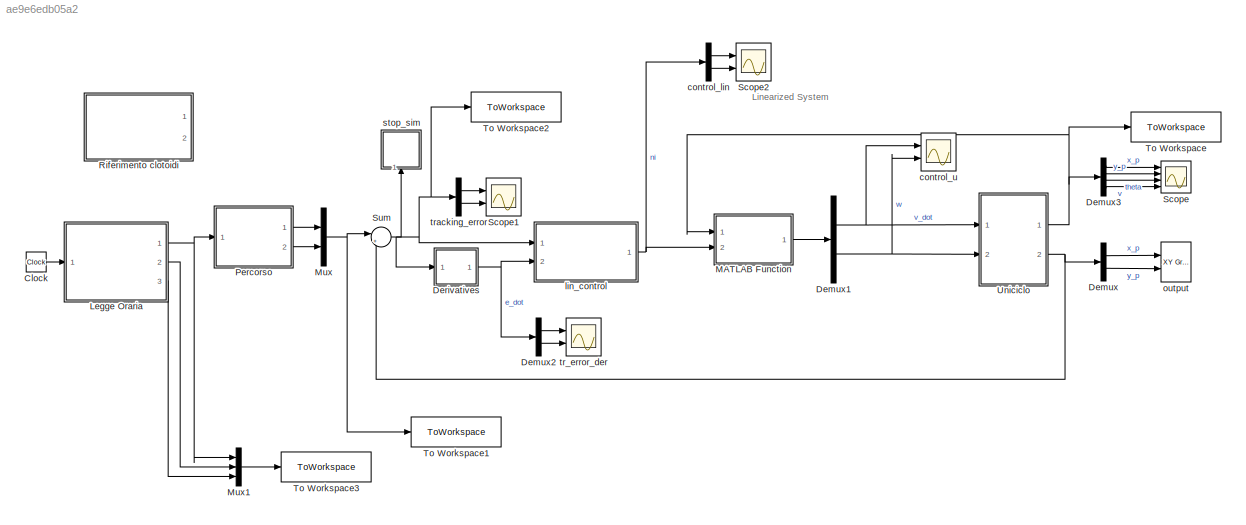
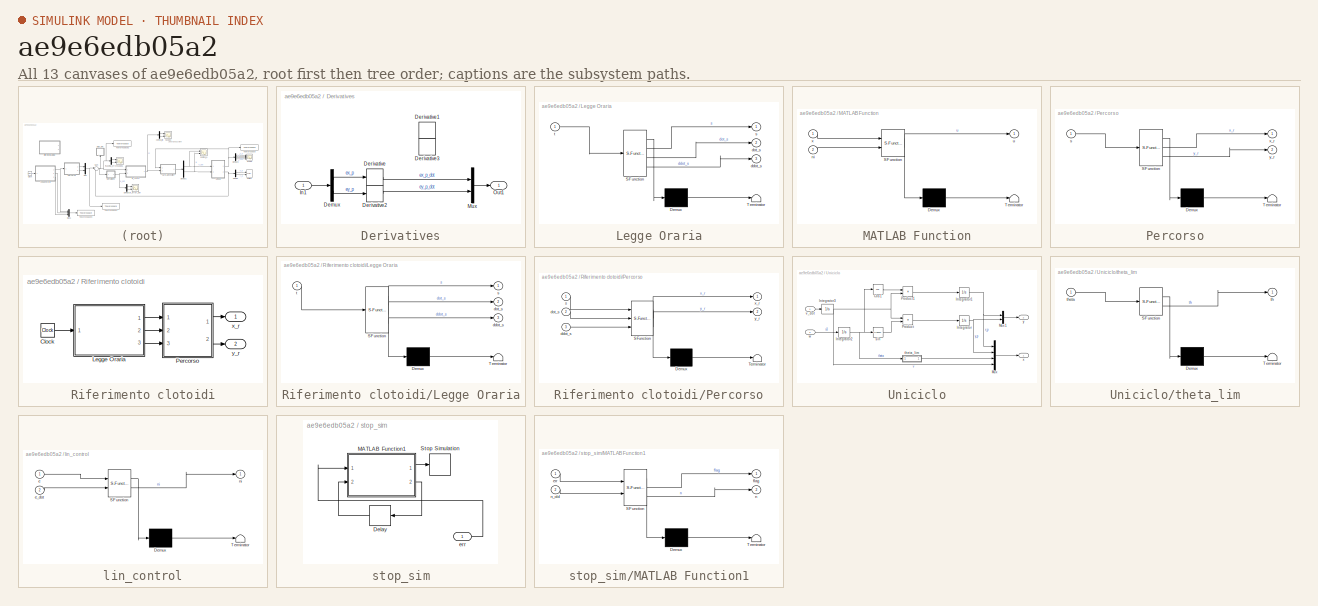
[diagram: thumbnail index - all 13 canvases of the model, root first then tree order]
MODEL slx_ae9e6edb05a2
KIND model
CONFIG AbsTol = auto
CONFIG EnableMultiTasking = off
CONFIG FixedStep = auto
CONFIG InitFcn = init_uniciclo
CONFIG MaxStep = 0.01
CONFIG MinStep = auto
CONFIG RelTol = 1e-3
CONFIG SampleTimeConstraint = Unconstrained
CONFIG Solver = VariableStepAuto
CONFIG SolverName = VariableStepAuto
CONFIG StartTime = 0.0
CONFIG StopFcn = stop_uniciclo
CONFIG StopTime = Inf
BLOCK [Clock] Clock
BLOCK [Demux] Demux
  Outputs = 2
  Ports = [1, 2]
BLOCK [Demux] Demux1
  Outputs = 2
  Ports = [1, 2]
BLOCK [Demux] Demux2
  Outputs = 2
  Ports = [1, 2]
BLOCK [Demux] Demux3
  Ports = [1, 4]
BLOCK [SubSystem] Derivatives
  Ports = [1, 1]
  RequestExecContextInheritance = off
BLOCK [Demux] Derivatives/Demux
  Outputs = 2
  Ports = [1, 2]
BLOCK [Derivative] Derivatives/Derivative
  CoefficientInTFapproximation = 1e10
BLOCK [Derivative] Derivatives/Derivative1
  CoefficientInTFapproximation = 1e10
  Commented = on
BLOCK [Derivative] Derivatives/Derivative2
  CoefficientInTFapproximation = 1e10
BLOCK [Derivative] Derivatives/Derivative3
  CoefficientInTFapproximation = 1e10
  Commented = on
BLOCK [Inport] Derivatives/In1
BLOCK [Mux] Derivatives/Mux
  DisplayOption = bar
  Inputs = 2
  Ports = [2, 1]
BLOCK [Outport] Derivatives/Out1
BLOCK [SubSystem] Legge Oraria
  ErrorFcn = Stateflow.Translate.translate
  PermitHierarchicalResolution = ExplicitOnly
  Ports = [1, 3]
  RequestExecContextInheritance = off
  SFBlockType = MATLAB Function
  TreatAsAtomicUnit = on
BLOCK [Demux] Legge Oraria/ Demux 
  Outputs = 1
  Ports = [1, 1]
BLOCK [S-Function] Legge Oraria/ SFunction 
  EnableBusSupport = on
  FunctionName = sf_sfun
  Parameters = v_rif
  PortCounts = [1 4]
  Ports = [1, 4]
  SFcnIsStateOwnerBlock = off
  SFunctionDeploymentMode = off
  Tag = Stateflow S-Function 7
BLOCK [Terminator] Legge Oraria/ Terminator 
BLOCK [Outport] Legge Oraria/ddot_s
  Port = 3
BLOCK [Outport] Legge Oraria/dot_s
  Port = 2
BLOCK [Outport] Legge Oraria/s
BLOCK [Inport] Legge Oraria/t
BLOCK [SubSystem] MATLAB Function
  ErrorFcn = Stateflow.Translate.translate
  PermitHierarchicalResolution = ExplicitOnly
  Ports = [2, 1]
  RequestExecContextInheritance = off
  SFBlockType = MATLAB Function
  TreatAsAtomicUnit = on
BLOCK [Demux] MATLAB Function/ Demux 
  Outputs = 1
  Ports = [1, 1]
BLOCK [S-Function] MATLAB Function/ SFunction 
  EnableBusSupport = on
  FunctionName = sf_sfun
  PortCounts = [2 2]
  Ports = [2, 2]
  SFcnIsStateOwnerBlock = off
  SFunctionDeploymentMode = off
  Tag = Stateflow S-Function 2
BLOCK [Terminator] MATLAB Function/ Terminator 
BLOCK [Inport] MATLAB Function/ni
  Port = 2
BLOCK [Outport] MATLAB Function/u
BLOCK [Inport] MATLAB Function/x
BLOCK [Mux] Mux
  DisplayOption = bar
  Inputs = 2
  Ports = [2, 1]
BLOCK [Mux] Mux1
  DisplayOption = bar
  Inputs = 3
  Ports = [3, 1]
BLOCK [SubSystem] Percorso
  ErrorFcn = Stateflow.Translate.translate
  PermitHierarchicalResolution = ExplicitOnly
  Ports = [1, 2]
  RequestExecContextInheritance = off
  SFBlockType = MATLAB Function
  TreatAsAtomicUnit = on
BLOCK [Demux] Percorso/ Demux 
  Outputs = 1
  Ports = [1, 1]
BLOCK [S-Function] Percorso/ SFunction 
  EnableBusSupport = on
  FunctionName = sf_sfun
  PortCounts = [1 3]
  Ports = [1, 3]
  SFcnIsStateOwnerBlock = off
  SFunctionDeploymentMode = off
  Tag = Stateflow S-Function 8
BLOCK [Terminator] Percorso/ Terminator 
BLOCK [Inport] Percorso/s
BLOCK [Outport] Percorso/x_r
BLOCK [Outport] Percorso/y_r
  Port = 2
BLOCK [SubSystem] Riferimento clotoidi
  Commented = on
  Ports = [0, 2]
  RequestExecContextInheritance = off
BLOCK [Clock] Riferimento clotoidi/Clock
BLOCK [SubSystem] Riferimento clotoidi/Legge Oraria
  ErrorFcn = Stateflow.Translate.translate
  PermitHierarchicalResolution = ExplicitOnly
  Ports = [1, 3]
  RequestExecContextInheritance = off
  SFBlockType = MATLAB Function
  TreatAsAtomicUnit = on
BLOCK [Demux] Riferimento clotoidi/Legge Oraria/ Demux 
  Outputs = 1
  Ports = [1, 1]
BLOCK [S-Function] Riferimento clotoidi/Legge Oraria/ SFunction 
  EnableBusSupport = on
  FunctionName = sf_sfun
  Parameters = v_iniziale
  PortCounts = [1 4]
  Ports = [1, 4]
  SFcnIsStateOwnerBlock = off
  SFunctionDeploymentMode = off
  Tag = Stateflow S-Function 3
BLOCK [Terminator] Riferimento clotoidi/Legge Oraria/ Terminator 
BLOCK [Outport] Riferimento clotoidi/Legge Oraria/ddot_s
  Port = 3
BLOCK [Outport] Riferimento clotoidi/Legge Oraria/dot_s
  Port = 2
BLOCK [Outport] Riferimento clotoidi/Legge Oraria/s
BLOCK [Inport] Riferimento clotoidi/Legge Oraria/t
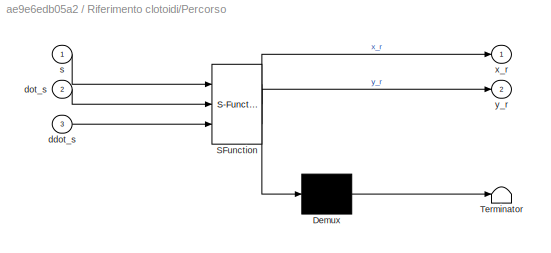
BLOCK [SubSystem] Riferimento clotoidi/Percorso
  ErrorFcn = Stateflow.Translate.translate
  PermitHierarchicalResolution = ExplicitOnly
  Ports = [3, 2]
  RequestExecContextInheritance = off
  SFBlockType = MATLAB Function
  TreatAsAtomicUnit = on
BLOCK [Demux] Riferimento clotoidi/Percorso/ Demux 
  Outputs = 1
  Ports = [1, 1]
BLOCK [S-Function] Riferimento clotoidi/Percorso/ SFunction 
  EnableBusSupport = on
  FunctionName = sf_sfun
  Parameters = Lsofar,Lsofarclot,a,indexclot,n_p,s_f,t_f,theta_rette,v,v_raggiunta,xp,yp
  PortCounts = [3 3]
  Ports = [3, 3]
  SFcnIsStateOwnerBlock = off
  SFunctionDeploymentMode = off
  Tag = Stateflow S-Function 6
BLOCK [Terminator] Riferimento clotoidi/Percorso/ Terminator 
BLOCK [Inport] Riferimento clotoidi/Percorso/ddot_s
  Port = 3
BLOCK [Inport] Riferimento clotoidi/Percorso/dot_s
  Port = 2
BLOCK [Inport] Riferimento clotoidi/Percorso/s
BLOCK [Outport] Riferimento clotoidi/Percorso/x_r
BLOCK [Outport] Riferimento clotoidi/Percorso/y_r
  Port = 2
BLOCK [Outport] Riferimento clotoidi/x_r
BLOCK [Outport] Riferimento clotoidi/y_r
  Port = 2
BLOCK [Scope] Scope
  Floating = off
  NumInputPorts = 4
  Ports = [4]
  ScopeSpecificationString = Simulink.scopes.TimeScopeBlockCfg('CurrentConfiguration', extmgr.ConfigurationSet(extmgr.Configuration('Core','General UI',true),extmgr.Configuration('Core','Source UI',true),extmgr.Configuration('Sources','WiredSimulink',true,'DataLoggingVariableName','ScopeData4'),extmgr.Configuration('Visuals','Time Domain',true,'SerializedDisplays',{struct('MinYLimReal','-2.00113','MaxYLimReal','3.464','YLabel...<+1539ch>
BLOCK [Scope] Scope1
  Floating = off
  NumInputPorts = 2
  Ports = [2]
  ScopeSpecificationString = Simulink.scopes.TimeScopeBlockCfg('CurrentConfiguration', extmgr.ConfigurationSet(extmgr.Configuration('Core','General UI',true),extmgr.Configuration('Core','Source UI',true),extmgr.Configuration('Sources','WiredSimulink',true,'DataLoggingVariableName','ScopeData1'),extmgr.Configuration('Visuals','Time Domain',true,'SerializedDisplays',{struct('MinYLimReal','-0.00141','MaxYLimReal','0.02236','YLab...<+1443ch>
BLOCK [Scope] Scope2
  Floating = off
  NumInputPorts = 2
  Ports = [2]
  ScopeSpecificationString = Simulink.scopes.TimeScopeBlockCfg('CurrentConfiguration', extmgr.ConfigurationSet(extmgr.Configuration('Core','General UI',true),extmgr.Configuration('Core','Source UI',true),extmgr.Configuration('Sources','WiredSimulink',true,'DataLoggingVariableName','ScopeData3'),extmgr.Configuration('Visuals','Time Domain',true,'SerializedDisplays',{struct('MinYLimReal','-5.04232','MaxYLimReal','45.0047','YLab...<+1461ch>
BLOCK [Sum] Sum
  Inputs = |+-
  Ports = [2, 1]
BLOCK [ToWorkspace] To Workspace
  FixptAsFi = on
  MaxDataPoints = inf
  Ports = [1]
  SampleTime = -1
  SaveFormat = Timeseries
  VariableName = state_ts
BLOCK [ToWorkspace] To Workspace1
  FixptAsFi = on
  MaxDataPoints = inf
  Ports = [1]
  SampleTime = -1
  SaveFormat = Timeseries
  VariableName = rif
BLOCK [ToWorkspace] To Workspace2
  FixptAsFi = on
  MaxDataPoints = inf
  Ports = [1]
  SampleTime = -1
  SaveFormat = Timeseries
  VariableName = err
BLOCK [ToWorkspace] To Workspace3
  FixptAsFi = on
  MaxDataPoints = inf
  Ports = [1]
  SampleTime = -1
  SaveFormat = Timeseries
  VariableName = curv_coord
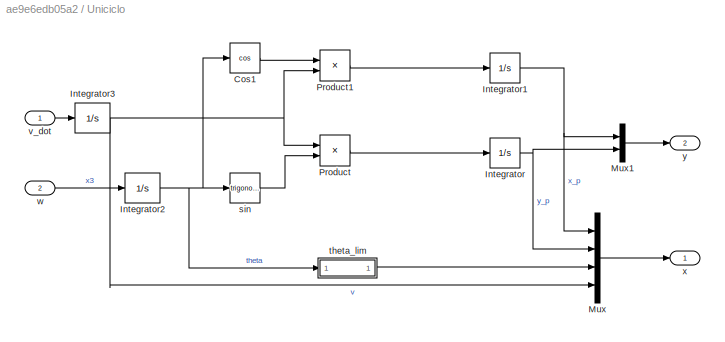
BLOCK [SubSystem] Uniciclo
  Ports = [2, 2]
  RequestExecContextInheritance = off
BLOCK [Trigonometry] Uniciclo/Cos1
  Operator = cos
  Ports = [1, 1]
BLOCK [Integrator] Uniciclo/Integrator
  InitialCondition = y_p_iniziale
  Ports = [1, 1]
BLOCK [Integrator] Uniciclo/Integrator1
  InitialCondition = x_p_iniziale
  Ports = [1, 1]
BLOCK [Integrator] Uniciclo/Integrator2
  InitialCondition = theta_iniziale
  NameLocation = top
  Ports = [1, 1]
BLOCK [Integrator] Uniciclo/Integrator3
  InitialCondition = v_iniziale
  NameLocation = top
  Ports = [1, 1]
BLOCK [Mux] Uniciclo/Mux
  DisplayOption = bar
  Ports = [4, 1]
BLOCK [Mux] Uniciclo/Mux1
  DisplayOption = bar
  Inputs = 2
  Ports = [2, 1]
BLOCK [Product] Uniciclo/Product
  Ports = [2, 1]
BLOCK [Product] Uniciclo/Product1
  Ports = [2, 1]
BLOCK [Trigonometry] Uniciclo/sin
  Ports = [1, 1]
BLOCK [SubSystem] Uniciclo/theta_lim
  ErrorFcn = Stateflow.Translate.translate
  NameLocation = top
  PermitHierarchicalResolution = ExplicitOnly
  Ports = [1, 1]
  RequestExecContextInheritance = off
  SFBlockType = MATLAB Function
  TreatAsAtomicUnit = on
BLOCK [Demux] Uniciclo/theta_lim/ Demux 
  Outputs = 1
  Ports = [1, 1]
BLOCK [S-Function] Uniciclo/theta_lim/ SFunction 
  EnableBusSupport = on
  FunctionName = sf_sfun
  PortCounts = [1 2]
  Ports = [1, 2]
  SFcnIsStateOwnerBlock = off
  SFunctionDeploymentMode = off
  Tag = Stateflow S-Function 4
BLOCK [Terminator] Uniciclo/theta_lim/ Terminator 
BLOCK [Outport] Uniciclo/theta_lim/th
BLOCK [Inport] Uniciclo/theta_lim/theta
BLOCK [Inport] Uniciclo/v_dot
BLOCK [Inport] Uniciclo/w
  Port = 2
BLOCK [Outport] Uniciclo/x
BLOCK [Outport] Uniciclo/y
  Port = 2
BLOCK [Demux] control_lin
  Outputs = 2
  Ports = [1, 2]
BLOCK [Scope] control_u
  Floating = off
  NumInputPorts = 2
  Ports = [2]
  ScopeSpecificationString = Simulink.scopes.TimeScopeBlockCfg('CurrentConfiguration', extmgr.ConfigurationSet(extmgr.Configuration('Core','General UI',true),extmgr.Configuration('Core','Source UI',true),extmgr.Configuration('Sources','WiredSimulink',true,'DataLoggingVariableName','ScopeData2'),extmgr.Configuration('Visuals','Time Domain',true,'SerializedDisplays',{struct('MinYLimReal','-0.06253','MaxYLimReal','0.56231','YLab...<+1483ch>
BLOCK [SubSystem] lin_control
  ErrorFcn = Stateflow.Translate.translate
  PermitHierarchicalResolution = ExplicitOnly
  Ports = [2, 1]
  RequestExecContextInheritance = off
  SFBlockType = MATLAB Function
  TreatAsAtomicUnit = on
BLOCK [Demux] lin_control/ Demux 
  Outputs = 1
  Ports = [1, 1]
BLOCK [S-Function] lin_control/ SFunction 
  EnableBusSupport = on
  FunctionName = sf_sfun
  Parameters = K1,K2
  PortCounts = [2 2]
  Ports = [2, 2]
  SFcnIsStateOwnerBlock = off
  SFunctionDeploymentMode = off
  Tag = Stateflow S-Function 1
BLOCK [Terminator] lin_control/ Terminator 
BLOCK [Inport] lin_control/e
BLOCK [Inport] lin_control/e_dot
  Port = 2
BLOCK [Outport] lin_control/ni
BLOCK [Reference] output  REF=simulink/Sinks/XY Graph
  Ports = [2]
  SourceBlock = simulink/Sinks/XY Graph
  SourceProductBaseCode = SL
  SourceType = XY scope.
BLOCK [SubSystem] stop_sim
  NameLocation = top
  Ports = [1]
  RequestExecContextInheritance = off
BLOCK [Delay] stop_sim/Delay
  DelayLength = 1
  InputPortMap = u0
  Ports = [1, 1]
BLOCK [SubSystem] stop_sim/MATLAB Function1
  ErrorFcn = Stateflow.Translate.translate
  PermitHierarchicalResolution = ExplicitOnly
  Ports = [2, 2]
  RequestExecContextInheritance = off
  SFBlockType = MATLAB Function
  TreatAsAtomicUnit = on
BLOCK [Demux] stop_sim/MATLAB Function1/ Demux 
  Outputs = 1
  Ports = [1, 1]
BLOCK [S-Function] stop_sim/MATLAB Function1/ SFunction 
  EnableBusSupport = on
  FunctionName = sf_sfun
  Parameters = threshold
  PortCounts = [2 3]
  Ports = [2, 3]
  SFcnIsStateOwnerBlock = off
  SFunctionDeploymentMode = off
  Tag = Stateflow S-Function 5
BLOCK [Terminator] stop_sim/MATLAB Function1/ Terminator 
BLOCK [Inport] stop_sim/MATLAB Function1/err
BLOCK [Outport] stop_sim/MATLAB Function1/flag
BLOCK [Outport] stop_sim/MATLAB Function1/n
  Port = 2
BLOCK [Inport] stop_sim/MATLAB Function1/n_old
  Port = 2
BLOCK [Stop] stop_sim/Stop Simulation
BLOCK [Inport] stop_sim/err
BLOCK [Scope] tr_error_der
  Floating = off
  NumInputPorts = 2
  Ports = [2]
  ScopeSpecificationString = Simulink.scopes.TimeScopeBlockCfg('CurrentConfiguration', extmgr.ConfigurationSet(extmgr.Configuration('Core','General UI',true),extmgr.Configuration('Core','Source UI',true),extmgr.Configuration('Sources','WiredSimulink',true),extmgr.Configuration('Visuals','Time Domain',true,'SerializedDisplays',{struct('MinYLimReal','-0.68551','MaxYLimReal','0.26803','YLabelReal','','MinYLimMag','0.00000','MaxY...<+1411ch>
BLOCK [Demux] tracking_error
  Outputs = 2
  Ports = [1, 2]
ANNOTATION (root): Linearized System
LINE Clock:1 -> Legge Oraria:1
NET Demux1:1 -> Uniciclo:1, control_u:1
NET Demux1:2 -> Uniciclo:2, control_u:2
LINE Demux2:1 -> tr_error_der:1
LINE Demux2:2 -> tr_error_der:2
LINE Demux3:1 -> Scope:1
LINE Demux3:2 -> Scope:2
LINE Demux3:3 -> Scope:3
LINE Demux3:4 -> Scope:4
LINE Demux:1 -> output:1
LINE Demux:2 -> output:2
LINE Derivatives/Demux:1 -> Derivatives/Derivative:1
LINE Derivatives/Demux:2 -> Derivatives/Derivative2:1
LINE Derivatives/Derivative2:1 -> Derivatives/Mux:2
LINE Derivatives/Derivative:1 -> Derivatives/Mux:1
LINE Derivatives/In1:1 -> Derivatives/Demux:1
LINE Derivatives/Mux:1 -> Derivatives/Out1:1
NET Derivatives:1 -> Demux2:1, lin_control:2
NET Legge Oraria:1 -> Mux1:1, Percorso:1
LINE Legge Oraria:2 -> Mux1:2
LINE Legge Oraria:3 -> Mux1:3
LINE MATLAB Function:1 -> Demux1:1
LINE Mux1:1 -> To Workspace3:1
NET Mux:1 -> Sum:1, To Workspace1:1
LINE Percorso:1 -> Mux:1
LINE Percorso:2 -> Mux:2
LINE Riferimento clotoidi/Clock:1 -> Riferimento clotoidi/Legge Oraria:1
LINE Riferimento clotoidi/Legge Oraria:1 -> Riferimento clotoidi/Percorso:1
LINE Riferimento clotoidi/Legge Oraria:2 -> Riferimento clotoidi/Percorso:2
LINE Riferimento clotoidi/Legge Oraria:3 -> Riferimento clotoidi/Percorso:3
LINE Riferimento clotoidi/Percorso:1 -> Riferimento clotoidi/x_r:1
LINE Riferimento clotoidi/Percorso:2 -> Riferimento clotoidi/y_r:1
NET Sum:1 -> Derivatives:1, To Workspace2:1, lin_control:1, stop_sim:1, tracking_error:1
LINE Uniciclo/Cos1:1 -> Uniciclo/Product1:1
NET Uniciclo/Integrator1:1 -> Uniciclo/Mux1:1, Uniciclo/Mux:1
NET Uniciclo/Integrator2:1 -> Uniciclo/Cos1:1, Uniciclo/sin:1, Uniciclo/theta_lim:1
NET Uniciclo/Integrator3:1 -> Uniciclo/Mux:4, Uniciclo/Product1:2, Uniciclo/Product:1
NET Uniciclo/Integrator:1 -> Uniciclo/Mux1:2, Uniciclo/Mux:2
LINE Uniciclo/Mux1:1 -> Uniciclo/y:1
LINE Uniciclo/Mux:1 -> Uniciclo/x:1
LINE Uniciclo/Product1:1 -> Uniciclo/Integrator1:1
LINE Uniciclo/Product:1 -> Uniciclo/Integrator:1
LINE Uniciclo/sin:1 -> Uniciclo/Product:2
LINE Uniciclo/theta_lim:1 -> Uniciclo/Mux:3
LINE Uniciclo/v_dot:1 -> Uniciclo/Integrator3:1
LINE Uniciclo/w:1 -> Uniciclo/Integrator2:1
NET Uniciclo:1 -> Demux3:1, MATLAB Function:1, To Workspace:1
NET Uniciclo:2 -> Demux:1, Sum:2
LINE control_lin:1 -> Scope2:1
LINE control_lin:2 -> Scope2:2
NET lin_control:1 -> MATLAB Function:2, control_lin:1
LINE stop_sim/Delay:1 -> stop_sim/MATLAB Function1:2
LINE stop_sim/MATLAB Function1:1 -> stop_sim/Stop Simulation:1
LINE stop_sim/MATLAB Function1:2 -> stop_sim/Delay:1
LINE stop_sim/err:1 -> stop_sim/MATLAB Function1:1
LINE tracking_error:1 -> Scope1:1
LINE tracking_error:2 -> Scope1:2
note: NET lines group one-source signal fan-out (src -> all destinations, sorted); 1:1 wires keep LINE
CHART Percorso states=1 transitions=1
  STATE_LABEL 'eML_blk_kernel()'
  STATE_LABEL 'SCRIPT:\nfunction [x_r, y_r] = percorso(s)\n\n\n\n% pos = s * [0; 1] + [1; 0]*cos(s);\t\t\t\t% sinusoide\n\nr = 10;\ntheta_circ = s/r;\n\npos = r*[cos(theta_circ);sin(theta_circ)];\t\t% circonferenza\n%p = [cos(s/2);sin(s/2)];\n%pos = min(1/(s/100+0.01),r) * p;\t\t\t\t\t% spirale\n%pos = 1/(s/100+0.01) * p;\n\nx_r = pos(1);\ny_r = pos(2);\n\nend\n'
CHART lin_control states=1 transitions=1
  STATE_LABEL 'eML_blk_kernel()'
  STATE_LABEL 'SCRIPT:\nfunction ni = lin_control(e, e_dot, K1, K2)\n\nni = K1.*e + K2.*e_dot;\n\nend\n'
CHART MATLAB Function states=1 transitions=1
  STATE_LABEL 'eML_blk_kernel()'
  STATE_LABEL 'SCRIPT:\nfunction u = Linearized(x,ni)\ntheta = x(3);\nv = x(4);\n\nE_inv = inv_E(theta, v);\nG = Gamma();\nu =  -E_inv*G + E_inv*ni;\nend\n\n% gamma\nfunction Gm = Gamma()\nGm = [0;0];\nend\n% \nfunction E_in = inv_E(theta, v)\nE = [cos(theta) -v*sin(theta);\n\t sin(theta)  v*cos(theta)];\nE_in = inv(E);\nend\n'
CHART Riferimento clotoidi/Legge Oraria states=1 transitions=1
  STATE_LABEL 'eML_blk_kernel()'
  STATE_LABEL 'SCRIPT:\nfunction [s, dot_s, ddot_s] = legge_oraria(t,v_iniziale)\n%#codegen PEPO\n\ns = v_iniziale*t;\ndot_s = v_iniziale;\nddot_s = 0.0;\n\n%     if v_raggiunta==0\n%         \n%         if t<=(s_f/a)^0.5               %acce\n%             s= 0.5*a*t^2;\n%             dot_s=a*t;\n%             ddot_s=a;\n%             \n%         elseif t>(s_f/a)^0.5 & t<=t_f   %decel\n%             s=s_f-0.5*a*(t_f-t)^2;\n%    ...<+627ch>'
CHART Uniciclo/theta_lim states=1 transitions=1
  STATE_LABEL 'eML_blk_kernel()'
  STATE_LABEL 'SCRIPT:\nfunction th = theta_lim(theta)\nc = cos(theta);\ns = sin(theta);\nth = atan2(s, c);\n\n'
CHART stop_sim/MATLAB Function1 states=1 transitions=1
  STATE_LABEL 'eML_blk_kernel()'
  STATE_LABEL 'SCRIPT:\nfunction [flag, n] = stop_function(err, n_old, threshold)\n\tflag = 0;\n\tn = n_old;\n\tif norm(err, 2) < threshold\n\t\tn=n+1;\n\telse\n\t\tn=0;\n\tend\n\t\n\tif n > 10\n\t\tflag = 1;\n\t\tn = 0;\n\tend\nend\n'
CHART Riferimento clotoidi/Percorso states=1 transitions=1
  STATE_LABEL 'eML_blk_kernel()'
  STATE_LABEL "SCRIPT:\nfunction [x_r,y_r ] = percorso(s, dot_s,ddot_s, a, indexclot, Lsofar, Lsofarclot, n_p, s_f, t_f, theta_rette, v, v_raggiunta, xp, yp)\n%#codegen      PEPO\n\n\ncoder.extrinsic('pointsOnClothoid')\n\n% v_r = dot_s ;\nntratto=0;\nXYS=[0 0]'; %definito prima\n%clot=struct('x0', 0, 'y0', 0, 'theta0', 0 , 'k0', 0, 'dk', 0, 'L', 0 );\n\n%Parte per capire in che tratto sono\n    if s<Lsofar(1)\n        ntratt...<+1381ch>"
CHART Legge Oraria states=1 transitions=1
  STATE_LABEL 'eML_blk_kernel()'
  STATE_LABEL 'SCRIPT:\nfunction [s, dot_s, ddot_s]  = legge_oraria(t, v_rif)\n%#codegen PEPO\n\ns = v_rif*t;\ndot_s = v_rif;\nddot_s = 0.0;\n\n%     if v_raggiunta==0\n%         \n%         if t<=(s_f/a)^0.5               %acce\n%             s= 0.5*a*t^2;\n%             dot_s=a*t;\n%             ddot_s=a;\n%             \n%         elseif t>(s_f/a)^0.5 & t<=t_f   %decel\n%             s=s_f-0.5*a*(t_f-t)^2;\n%             dot_...<+614ch>'
CHART  states=0 transitions=0
CHART  states=0 transitions=0
CHART  states=0 transitions=0
CHART  states=0 transitions=0
CHART  states=0 transitions=0
CHART  states=0 transitions=0
CHART  states=0 transitions=0
CHART  states=0 transitions=0
